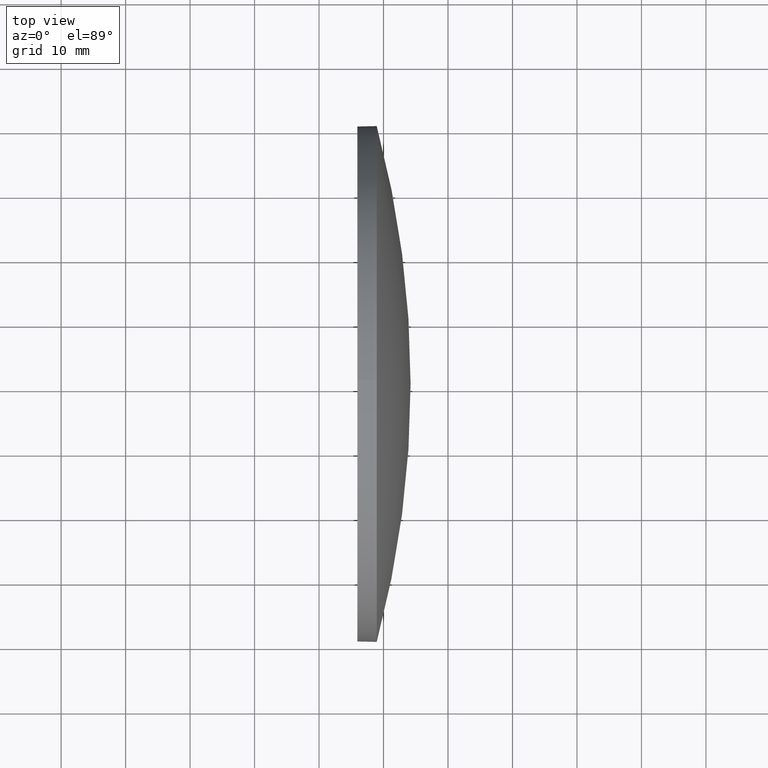
[diagram: clean part render]
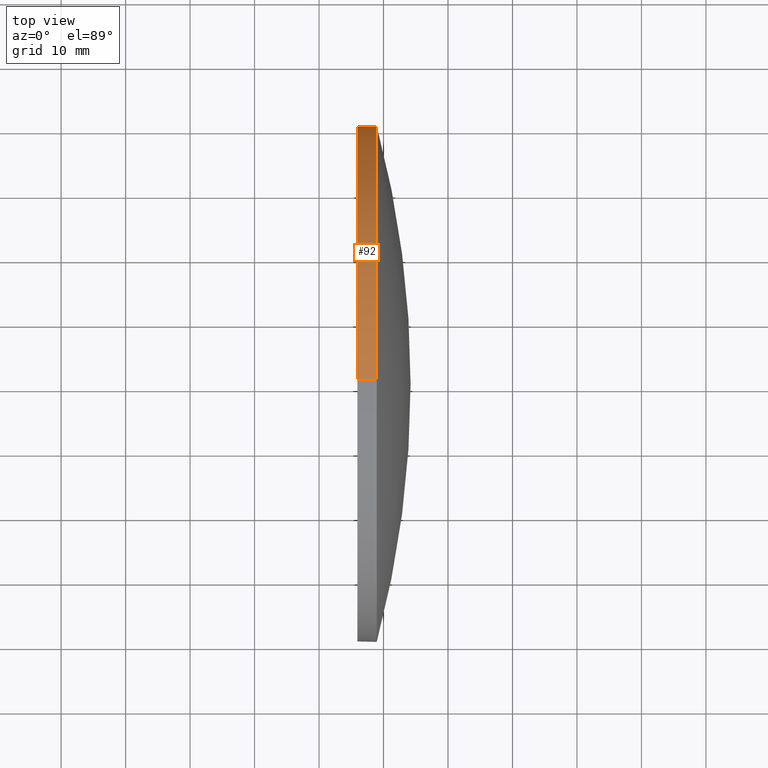
[diagram: same view with one face highlighted and labeled with its STEP entity id]
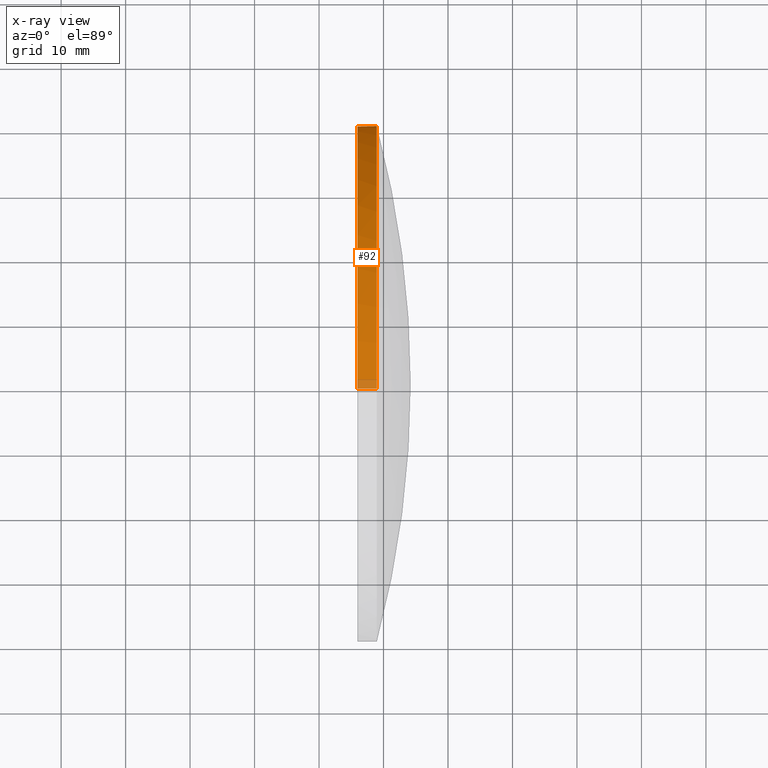
[diagram: x-ray of the same camera — body ghosted, the highlighted face saturated]
A machine part, top view. The second image highlights one B-rep face of the part: STEP entity #92.
The next image is the same camera in x-ray: the body ghosted, the highlighted face saturated — about 3% of this face is hidden behind the body in this view.
In plain terms, the highlighted cylindrical surface (partial cylindrical patch) has radius 40 mm, axis along (-1, -0, -0).
Its self-contained STEP definition (entity closure, byte-faithful):
#2 = AXIS2_PLACEMENT_3D ( 'NONE', #110, #141, #62 ) ;
#13 = DIRECTION ( 'NONE',  ( 0.0000000000000000000, 0.0000000000000000000, 1.000000000000000000 ) ) ;
#16 = CIRCLE ( 'NONE', #176, 40.00000000000000700 ) ;
#18 = DIRECTION ( 'NONE',  ( -1.000000000000000000, -0.0000000000000000000, -0.0000000000000000000 ) ) ;
#23 = ORIENTED_EDGE ( 'NONE', *, *, #78, .T. ) ;
#26 = VERTEX_POINT ( 'NONE', #142 ) ;
#27 = DIRECTION ( 'NONE',  ( -1.000000000000000000, -0.0000000000000000000, -0.0000000000000000000 ) ) ;
#35 = EDGE_CURVE ( 'NONE', #150, #81, #65, .T. ) ;
#38 = DIRECTION ( 'NONE',  ( -1.000000000000000000, -0.0000000000000000000, -0.0000000000000000000 ) ) ;
#39 = AXIS2_PLACEMENT_3D ( 'NONE', #186, #27, #167 ) ;
#54 = FACE_OUTER_BOUND ( 'NONE', #147, .T. ) ;
#59 = CARTESIAN_POINT ( 'NONE',  ( 228.9490942240209100, 130.4671098528244200, 0.0000000000000000000 ) ) ;
#61 = CIRCLE ( 'NONE', #128, 40.00000000000000700 ) ;
#62 = DIRECTION ( 'NONE',  ( 0.0000000000000000000, 0.0000000000000000000, 1.000000000000000000 ) ) ;
#65 = LINE ( 'NONE', #140, #135 ) ;
#68 = ORIENTED_EDGE ( 'NONE', *, *, #35, .F. ) ;
#74 = CARTESIAN_POINT ( 'NONE',  ( 228.9490942240209100, 130.4671098528244200, -40.00000000000000700 ) ) ;
#76 = CARTESIAN_POINT ( 'NONE',  ( 228.9490942240209100, 130.4671098528244200, 40.00000000000000700 ) ) ;
#78 = EDGE_CURVE ( 'NONE', #150, #145, #61, .T. ) ;
#81 = VERTEX_POINT ( 'NONE', #117 ) ;
#82 = CIRCLE ( 'NONE', #2, 40.00000000000000700 ) ;
#83 = DIRECTION ( 'NONE',  ( -1.000000000000000000, -0.0000000000000000000, -0.0000000000000000000 ) ) ;
#90 = CYLINDRICAL_SURFACE ( 'NONE', #39, 40.00000000000000700 ) ;
#92 = ADVANCED_FACE ( 'NONE', ( #54 ), #90, .T. ) ;
#96 = DIRECTION ( 'NONE',  ( -1.000000000000000000, -0.0000000000000000000, -0.0000000000000000000 ) ) ;
#97 = CARTESIAN_POINT ( 'NONE',  ( 228.9490942240208800, 170.4671098528244200, 4.898587196589408300E-015 ) ) ;
#108 = ORIENTED_EDGE ( 'NONE', *, *, #164, .T. ) ;
#110 = CARTESIAN_POINT ( 'NONE',  ( 228.9490942240209100, 130.4671098528244200, 0.0000000000000000000 ) ) ;
#117 = CARTESIAN_POINT ( 'NONE',  ( 225.9490942240209100, 130.4671098528244200, 40.00000000000000700 ) ) ;
#120 = DIRECTION ( 'NONE',  ( 0.0000000000000000000, 0.0000000000000000000, 1.000000000000000000 ) ) ;
#121 = VERTEX_POINT ( 'NONE', #74 ) ;
#123 = VECTOR ( 'NONE', #38, 1000.000000000000000 ) ;
#127 = LINE ( 'NONE', #143, #123 ) ;
#128 = AXIS2_PLACEMENT_3D ( 'NONE', #59, #96, #13 ) ;
#135 = VECTOR ( 'NONE', #83, 1000.000000000000000 ) ;
#140 = CARTESIAN_POINT ( 'NONE',  ( 217.9945825323866300, 130.4671098528244200, 40.00000000000000700 ) ) ;
#141 = DIRECTION ( 'NONE',  ( -1.000000000000000000, -0.0000000000000000000, -0.0000000000000000000 ) ) ;
#142 = CARTESIAN_POINT ( 'NONE',  ( 225.9490942240209100, 130.4671098528244200, -40.00000000000000700 ) ) ;
#143 = CARTESIAN_POINT ( 'NONE',  ( 217.9945825323866300, 130.4671098528244200, -40.00000000000000700 ) ) ;
#145 = VERTEX_POINT ( 'NONE', #97 ) ;
#147 = EDGE_LOOP ( 'NONE', ( #108, #180, #175, #68, #23 ) ) ;
#150 = VERTEX_POINT ( 'NONE', #76 ) ;
#151 = EDGE_CURVE ( 'NONE', #121, #26, #127, .T. ) ;
#159 = EDGE_CURVE ( 'NONE', #81, #26, #16, .T. ) ;
#164 = EDGE_CURVE ( 'NONE', #145, #121, #82, .T. ) ;
#167 = DIRECTION ( 'NONE',  ( 0.0000000000000000000, 0.0000000000000000000, 1.000000000000000000 ) ) ;
#174 = CARTESIAN_POINT ( 'NONE',  ( 225.9490942240209100, 130.4671098528244200, 0.0000000000000000000 ) ) ;
#175 = ORIENTED_EDGE ( 'NONE', *, *, #159, .F. ) ;
#176 = AXIS2_PLACEMENT_3D ( 'NONE', #174, #18, #120 ) ;
#180 = ORIENTED_EDGE ( 'NONE', *, *, #151, .T. ) ;
#186 = CARTESIAN_POINT ( 'NONE',  ( 217.9945825323866300, 130.4671098528244200, 0.0000000000000000000 ) ) ;